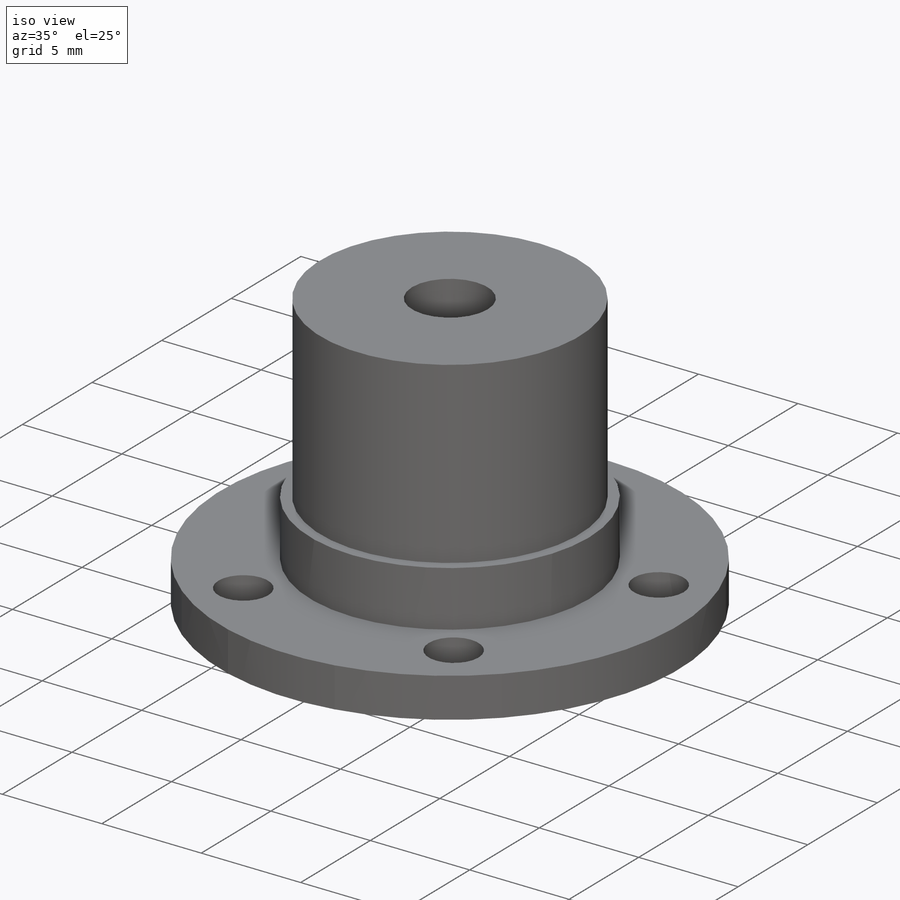
[diagram: iso view]
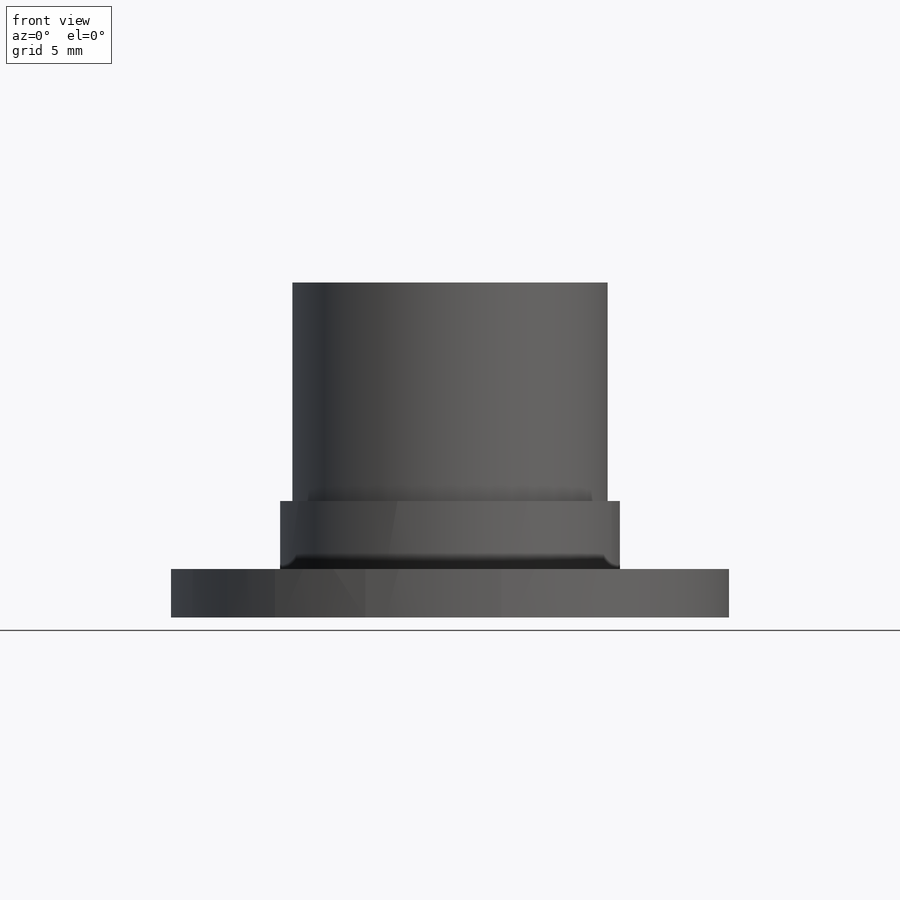
[diagram: front view]
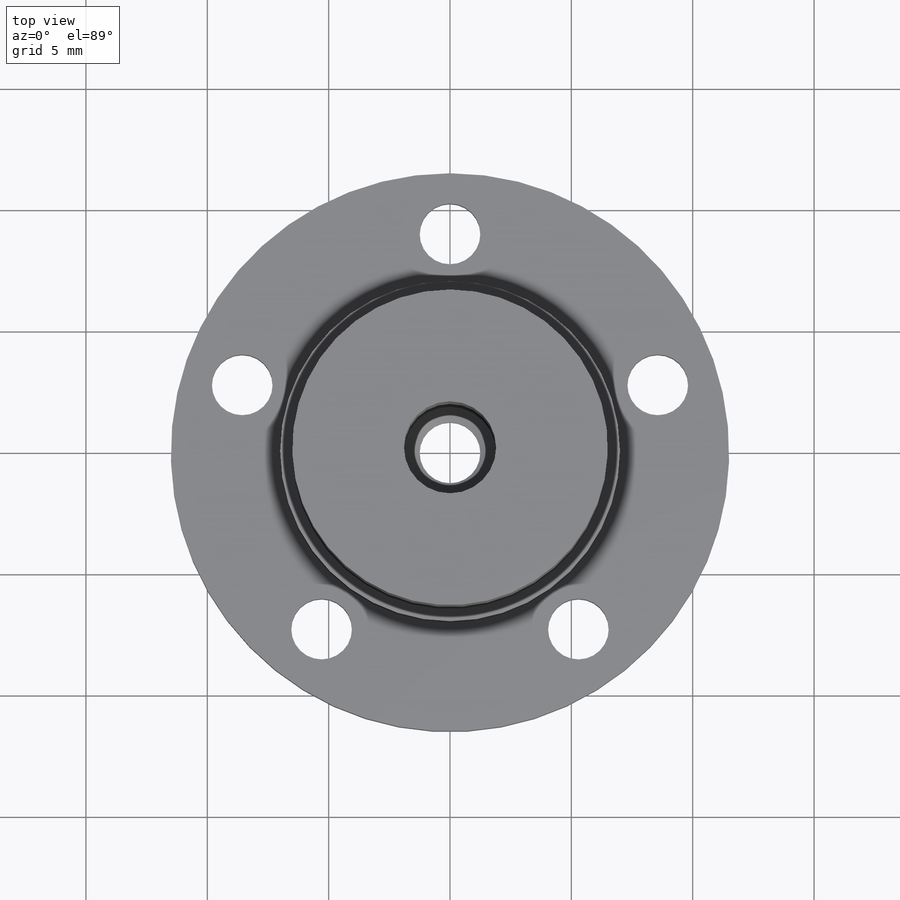
[diagram: top view]
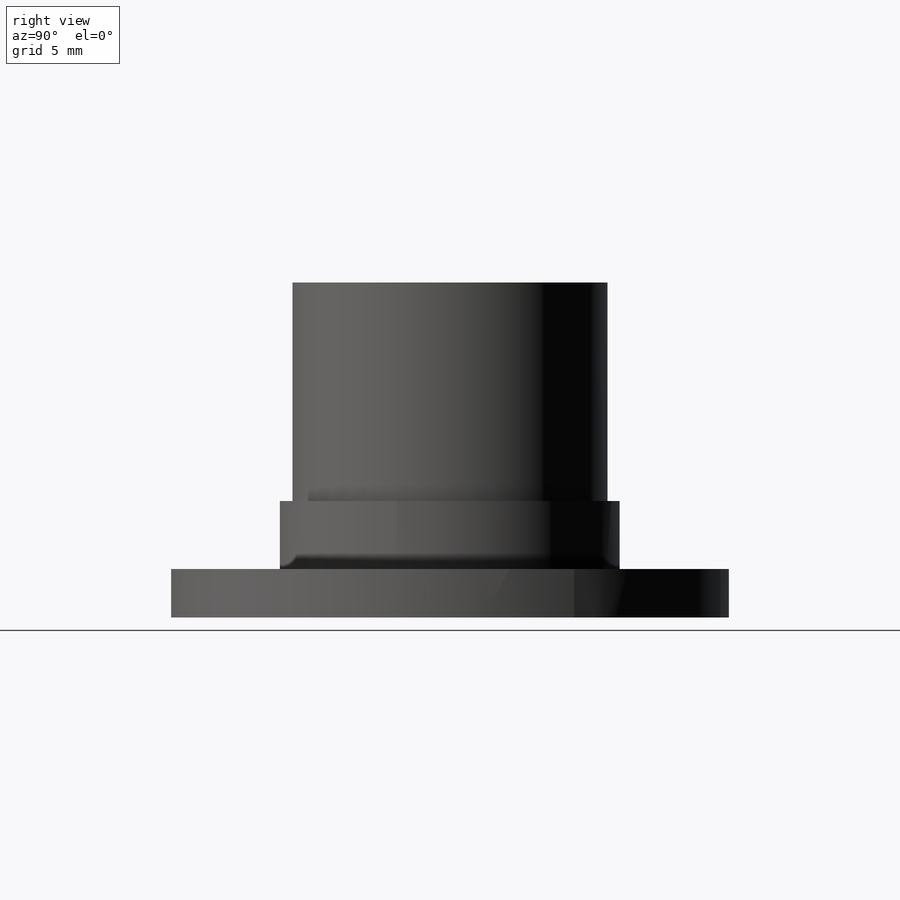
[diagram: right view]
SOLIDWORKS PART (.sldprt)
format: sldprt  version: not decoded by parser v0  size: 231,424 bytes
history: native  units: mm
features: thread x7, sketch x5, hole x2, material x1, revolve x1 (+11 scaffold rows collapsed)
feature tree (27):
  scaffold x11  (default folders/planes/origin — collapsed)
  material  "6061-T6 (SS)"
  sketch  "Sketch1"  dims[D1=13.8025mm D2=6.5mm D3=2.0mm D4=23.0mm D5=0.5mm D6=2.8mm]
  revolve  "Revolve1"  Angle=360deg
  hole  "M3x0.5 Tapped Hole1"  Diameter=2.5mm Depth=13.8025mm
  sketch  "Sketch3"  dims[c1.D1=9.0mm c1.D2=9.0mm c1.D3=9.0mm c2.D2=5.0]
  sketch  "Sketch4"  dims[hole-wizard template sketch: 60 standard entries collapsed; hole parameters kept: c18.Thru Tap Drill Depth=13.8025mm]
  thread  "Hole Thread1"  Diameter=3mm  [1 undecoded]
  thread  "Hole Thread2"  Diameter=3mm  [1 undecoded]
  thread  "Hole Thread3"  Diameter=3mm  [1 undecoded]
  thread  "Hole Thread4"  Diameter=3mm  [1 undecoded]
  thread  "Hole Thread5"  Diameter=3mm  [1 undecoded]
  thread  "Hole Thread6"  Diameter=3mm  [1 undecoded]
  hole  "#10-24 Tapped Hole1"  Diameter=3.7973mm Depth=12.7mm
  sketch  "Sketch9"
  sketch  "Sketch8"  dims[hole-wizard template sketch: 47 standard entries collapsed; hole parameters kept: c15.Tap Drill Depth=12.7mm c15.D3=~14.816244mm c15.Drill Angle=118.0deg]
  thread  "Hole Thread8"  Diameter=9.65mm  [1 undecoded]
decode coverage: 14 of 15 modeling features carry decoded parameters
note: ~ marks probable driven/reference dimensions
note: 7 parameter values undecoded
note: suppression state not decoded; provenance and decode notes live in map.json
